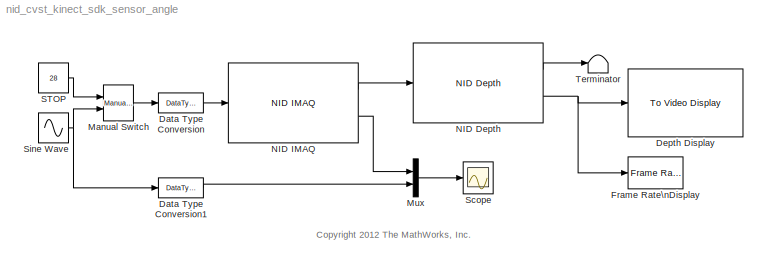
MODEL nid_cvst_kinect_sdk_sensor_angle
KIND model
BLOCK [DataTypeConversion] Data Type Conversion
  RndMeth = Floor
  SID = 142
  SaturateOnIntegerOverflow = off
BLOCK [DataTypeConversion] Data Type Conversion1
  RndMeth = Floor
  SID = 145
  SaturateOnIntegerOverflow = off
BLOCK [Reference] Depth Display  REF=vipsnks/To Video Display
  DialogControllerArgs = DataTag0
  OutputDevice = On-screen video monitor
  Ports = [1]
  SID = 133
  SourceBlock = vipsnks/To Video Display
  SourceType = To Video Display
  dataOrg = Column-major
  fullScreen = off
  imagePorts = One multidimensional signal
  inputType = Obsolete
  isWindowOpen = on
  openAtMdlStart = on
  saveWindowSize = off
  videoWindowHeight = 480
  videoWindowWidth = 640
  videoWindowX = 872
  videoWindowY = 173
BLOCK [Reference] Frame Rate\nDisplay  REF=vipsnks/Frame Rate\nDisplay
  DialogController = vipDDGCreate
  DialogControllerArgs = DataTag1
  Ports = [1]
  SID = 132
  SourceBlock = vipsnks/Frame Rate\nDisplay
  SourceType = Frame Rate Display
  UpdateRate = 10
BLOCK [Reference] Manual Switch  REF=simulink/Signal\nRouting/Manual Switch
  FunctionWithSeparateData = off
  GeneratePreprocessorConditionals = off
  Ports = [2, 1]
  RTWMemSecDataConstants = Inherit from model
  RTWMemSecDataInternal = Inherit from model
  RTWMemSecDataParameters = Inherit from model
  RTWMemSecFuncExecute = Inherit from model
  RTWMemSecFuncInitTerm = Inherit from model
  SID = 143
  ShowPortLabels = FromPortIcon
  SourceBlock = simulink/Signal\nRouting/Manual Switch
  SourceType = Manual Switch
  SystemSampleTime = -1
  action = 0
  sw = 0
  varsize = off
BLOCK [Mux] Mux
  DisplayOption = bar
  Inputs = 2
  Ports = [2, 1]
  SID = 141
BLOCK [Reference] NID Depth  REF=nid_lib/NID Depth
  Ports = [1, 2]
  SID = 129
  SourceBlock = nid_lib/NID Depth
  SourceType = NID Depth
  conv_XYZ_RW = off
  depthOutput = Depth
  viewer = on
BLOCK [Reference] NID IMAQ  REF=nid_lib/NID IMAQ
  Ports = [1, 2]
  SID = 130
  SourceBlock = nid_lib/NID IMAQ
  SourceType = NID IMAQ
  angle = 0
  angle_input = on
  angle_read = on
  imaq_depth = on
  imaq_image = off
  imaq_ir = off
  imaq_motion = off
  imaq_sample_time = 1/30
  imaq_skeleton = off
  mirror_image = off
  near_mode = off
  needPsiPose = off
  res_fps = VGA (640x480): 30 FPS
  seated_mode = off
  view_point = off
BLOCK [Constant] STOP
  SID = 144
  Value = 28
BLOCK [Scope] Scope
  DataFormat = StructureWithTime
  Floating = off
  LimitDataPoints = off
  NumInputPorts = 1
  Ports = [1]
  SID = 140
  SampleTime = 0
  TimeRange = 30
  YMax = 20
  YMin = -20
BLOCK [Sin] Sine Wave
  Amplitude = 20
  Ports = [0, 1]
  SID = 139
  SampleTime = 1/30
  Samples = 900
  SineType = Sample based
BLOCK [Terminator] Terminator
  SID = 138
ANNOTATION (root): <copyright redacted>
LINE Data Type Conversion1:1 -> Mux:2
LINE Data Type Conversion:1 -> NID IMAQ:1
LINE Manual Switch:1 -> Data Type Conversion:1
LINE Mux:1 -> Scope:1
LINE NID Depth:1 -> Terminator:1
NET NID Depth:2 -> Depth Display:1, Frame Rate\nDisplay:1
LINE NID IMAQ:1 -> NID Depth:1
LINE NID IMAQ:2 -> Mux:1
LINE STOP:1 -> Manual Switch:1
NET Sine Wave:1 -> Data Type Conversion1:1, Manual Switch:2
note: NET lines group one-source signal fan-out (src -> all destinations, sorted); 1:1 wires keep LINE
